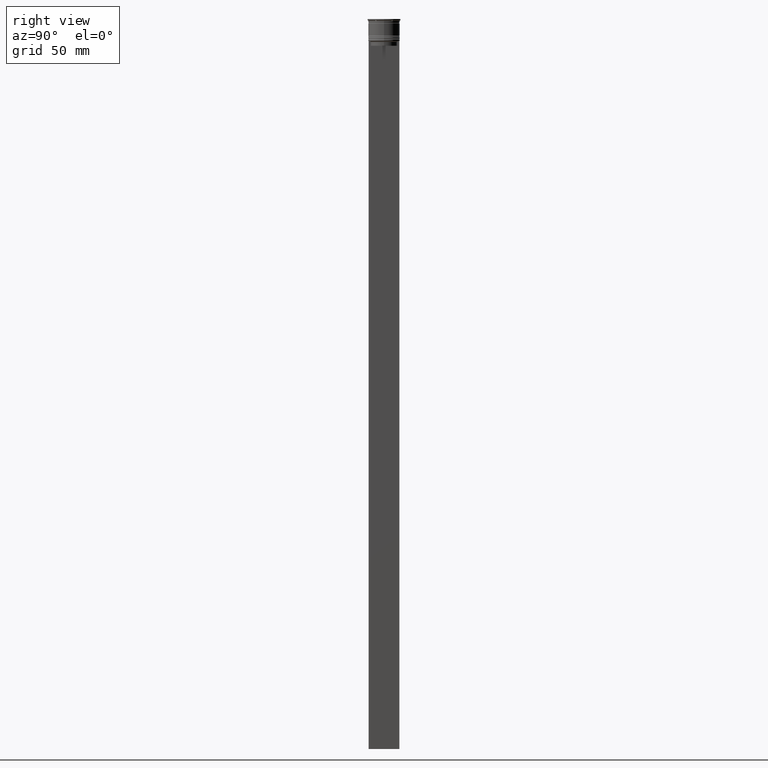
[diagram: clean part render]
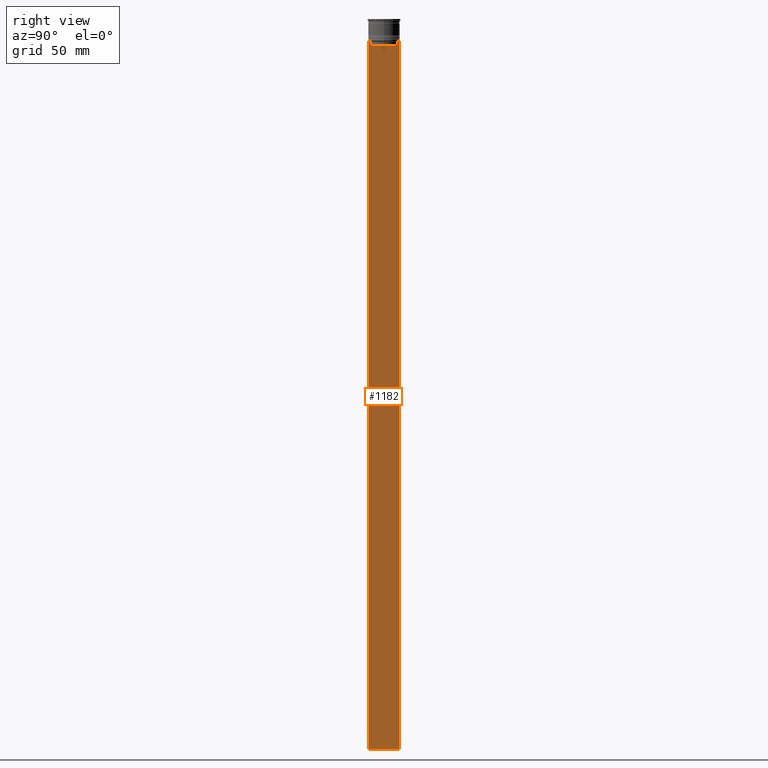
[diagram: same view with one face highlighted and labeled with its STEP entity id]
A machine part, right view. The second image highlights one B-rep face of the part: STEP entity #1182.
In plain terms, the highlighted planar face has unit normal (-1, 0, 0).
Its self-contained STEP definition (entity closure, byte-faithful):
#48 = ORIENTED_EDGE ( 'NONE', *, *, #1731, .T. ) ;
#123 = ORIENTED_EDGE ( 'NONE', *, *, #520, .F. ) ;
#137 = EDGE_CURVE ( 'NONE', #1722, #1807, #585, .T. ) ;
#155 = LINE ( 'NONE', #2394, #1229 ) ;
#193 = CARTESIAN_POINT ( 'NONE',  ( 0.4999999999999998890, 8.385105843100616241, -14.50000000000000000 ) ) ;
#197 = CARTESIAN_POINT ( 'NONE',  ( 0.4999999999999998890, 8.385105843100616241, -14.50000000000000000 ) ) ;
#233 = VECTOR ( 'NONE', #506, 1000.000000000000000 ) ;
#265 = CARTESIAN_POINT ( 'NONE',  ( 0.4999999999999998890, 9.750000000000001776, -464.0000000000000000 ) ) ;
#275 = DIRECTION ( 'NONE',  ( 0.000000000000000000, 0.000000000000000000, -1.000000000000000000 ) ) ;
#299 = VECTOR ( 'NONE', #1886, 1000.000000000000000 ) ;
#301 = CARTESIAN_POINT ( 'NONE',  ( 0.4999999999999998890, -9.749999999999998224, -14.00000000000000178 ) ) ;
#334 = LINE ( 'NONE', #2317, #877 ) ;
#348 = ORIENTED_EDGE ( 'NONE', *, *, #1938, .T. ) ;
#351 = CARTESIAN_POINT ( 'NONE',  ( 0.4999999999999998890, 8.385105843100616241, -17.00000000000000000 ) ) ;
#506 = DIRECTION ( 'NONE',  ( 0.000000000000000000, -1.000000000000000000, 0.000000000000000000 ) ) ;
#512 = LINE ( 'NONE', #751, #1032 ) ;
#520 = EDGE_CURVE ( 'NONE', #2558, #635, #1985, .T. ) ;
#522 = CARTESIAN_POINT ( 'NONE',  ( 0.4999999999999998890, -9.749999999999998224, -14.00000000000000178 ) ) ;
#554 = LINE ( 'NONE', #1542, #1734 ) ;
#557 = DIRECTION ( 'NONE',  ( -0.000000000000000000, -0.000000000000000000, 1.000000000000000000 ) ) ;
#585 = LINE ( 'NONE', #2348, #1995 ) ;
#635 = VERTEX_POINT ( 'NONE', #265 ) ;
#657 = ORIENTED_EDGE ( 'NONE', *, *, #766, .T. ) ;
#676 = VERTEX_POINT ( 'NONE', #522 ) ;
#684 = EDGE_CURVE ( 'NONE', #1950, #676, #2296, .T. ) ;
#724 = B_SPLINE_CURVE_WITH_KNOTS ( 'NONE', 3,
 ( #1072, #1462, #2261, #850 ),
 .UNSPECIFIED., .F., .F.,
 ( 4, 4 ),
 ( 0.03898465126933130243, 0.03969388910599658260 ),
 .UNSPECIFIED. ) ;
#729 = EDGE_CURVE ( 'NONE', #2558, #1902, #512, .T. ) ;
#745 = ORIENTED_EDGE ( 'NONE', *, *, #684, .T. ) ;
#751 = CARTESIAN_POINT ( 'NONE',  ( 0.4999999999999998890, -9.749999999999998224, -14.00000000000000178 ) ) ;
#766 = EDGE_CURVE ( 'NONE', #1749, #635, #554, .T. ) ;
#850 = CARTESIAN_POINT ( 'NONE',  ( 0.4999999999999998890, -8.885943956609230199, -14.00000000000000178 ) ) ;
#877 = VECTOR ( 'NONE', #946, 1000.000000000000000 ) ;
#886 = ORIENTED_EDGE ( 'NONE', *, *, #1089, .T. ) ;
#928 = EDGE_LOOP ( 'NONE', ( #1804, #48, #2144, #1606, #1207, #886, #745, #348, #657, #123 ) ) ;
#946 = DIRECTION ( 'NONE',  ( 0.000000000000000000, 0.000000000000000000, -1.000000000000000000 ) ) ;
#997 = CARTESIAN_POINT ( 'NONE',  ( 0.4999999999999998890, 9.750000000000001776, 5.525624189766635830 ) ) ;
#1004 = CARTESIAN_POINT ( 'NONE',  ( 0.4999999999999998890, 8.719005771582347464, -14.16667453442325453 ) ) ;
#1032 = VECTOR ( 'NONE', #2512, 1000.000000000000000 ) ;
#1072 = CARTESIAN_POINT ( 'NONE',  ( 0.4999999999999998890, -8.385105843100616241, -14.50000000000000000 ) ) ;
#1089 = EDGE_CURVE ( 'NONE', #1807, #1950, #724, .T. ) ;
#1112 = DIRECTION ( 'NONE',  ( -1.000000000000000000, 0.000000000000000000, 0.000000000000000000 ) ) ;
#1135 = DIRECTION ( 'NONE',  ( 0.000000000000000000, 0.000000000000000000, 1.000000000000000000 ) ) ;
#1144 = AXIS2_PLACEMENT_3D ( 'NONE', #2496, #1112, #1135 ) ;
#1156 = CARTESIAN_POINT ( 'NONE',  ( 0.4999999999999998890, -8.885943956609230199, -14.00000000000000178 ) ) ;
#1182 = ADVANCED_FACE ( 'NONE', ( #2100 ), #2483, .F. ) ;
#1207 = ORIENTED_EDGE ( 'NONE', *, *, #137, .T. ) ;
#1212 = CARTESIAN_POINT ( 'NONE',  ( 0.4999999999999998890, 8.552060201981378285, -14.33334167021640582 ) ) ;
#1229 = VECTOR ( 'NONE', #1552, 1000.000000000000000 ) ;
#1287 = EDGE_CURVE ( 'NONE', #1627, #1722, #155, .T. ) ;
#1297 = VERTEX_POINT ( 'NONE', #197 ) ;
#1462 = CARTESIAN_POINT ( 'NONE',  ( 0.4999999999999998890, -8.552060194457768105, -14.33334167772667556 ) ) ;
#1473 = EDGE_CURVE ( 'NONE', #1297, #1627, #2265, .T. ) ;
#1516 = VECTOR ( 'NONE', #275, 1000.000000000000000 ) ;
#1542 = CARTESIAN_POINT ( 'NONE',  ( 0.4999999999999998890, -9.749999999999998224, -464.0000000000000000 ) ) ;
#1552 = DIRECTION ( 'NONE',  ( 0.000000000000000000, -1.000000000000000000, 0.000000000000000000 ) ) ;
#1589 = CARTESIAN_POINT ( 'NONE',  ( 0.4999999999999998890, -9.749999999999998224, -464.0000000000000000 ) ) ;
#1606 = ORIENTED_EDGE ( 'NONE', *, *, #1287, .T. ) ;
#1627 = VERTEX_POINT ( 'NONE', #351 ) ;
#1676 = CARTESIAN_POINT ( 'NONE',  ( 0.4999999999999998890, -8.385105843100616241, -14.50000000000000000 ) ) ;
#1722 = VERTEX_POINT ( 'NONE', #2388 ) ;
#1731 = EDGE_CURVE ( 'NONE', #1902, #1297, #2489, .T. ) ;
#1734 = VECTOR ( 'NONE', #2288, 1000.000000000000000 ) ;
#1749 = VERTEX_POINT ( 'NONE', #1589 ) ;
#1804 = ORIENTED_EDGE ( 'NONE', *, *, #729, .T. ) ;
#1807 = VERTEX_POINT ( 'NONE', #1676 ) ;
#1845 = CARTESIAN_POINT ( 'NONE',  ( 0.4999999999999998890, 8.885943956609230199, -14.00000000000000178 ) ) ;
#1861 = CARTESIAN_POINT ( 'NONE',  ( 0.4999999999999998890, 8.385105843100616241, 0.000000000000000000 ) ) ;
#1886 = DIRECTION ( 'NONE',  ( 0.000000000000000000, 0.000000000000000000, -1.000000000000000000 ) ) ;
#1902 = VERTEX_POINT ( 'NONE', #1845 ) ;
#1938 = EDGE_CURVE ( 'NONE', #676, #1749, #334, .T. ) ;
#1950 = VERTEX_POINT ( 'NONE', #1156 ) ;
#1977 = CARTESIAN_POINT ( 'NONE',  ( 0.4999999999999998890, 8.885943956609230199, -14.00000000000000178 ) ) ;
#1985 = LINE ( 'NONE', #997, #1516 ) ;
#1994 = CARTESIAN_POINT ( 'NONE',  ( 0.4999999999999998890, 9.750000000000001776, -14.00000000000000178 ) ) ;
#1995 = VECTOR ( 'NONE', #557, 1000.000000000000000 ) ;
#2100 = FACE_OUTER_BOUND ( 'NONE', #928, .T. ) ;
#2144 = ORIENTED_EDGE ( 'NONE', *, *, #1473, .T. ) ;
#2261 = CARTESIAN_POINT ( 'NONE',  ( 0.4999999999999998890, -8.719005764482787413, -14.16667454151160044 ) ) ;
#2265 = LINE ( 'NONE', #1861, #299 ) ;
#2288 = DIRECTION ( 'NONE',  ( 0.000000000000000000, 1.000000000000000000, 0.000000000000000000 ) ) ;
#2296 = LINE ( 'NONE', #301, #233 ) ;
#2317 = CARTESIAN_POINT ( 'NONE',  ( 0.4999999999999998890, -9.749999999999998224, 5.525624189766635830 ) ) ;
#2348 = CARTESIAN_POINT ( 'NONE',  ( 0.4999999999999998890, -8.385105843100616241, 0.000000000000000000 ) ) ;
#2388 = CARTESIAN_POINT ( 'NONE',  ( 0.4999999999999998890, -8.385105843100616241, -17.00000000000000000 ) ) ;
#2394 = CARTESIAN_POINT ( 'NONE',  ( 0.4999999999999998890, 8.400000000000003908, -17.00000000000000000 ) ) ;
#2483 = PLANE ( 'NONE',  #1144 ) ;
#2489 = B_SPLINE_CURVE_WITH_KNOTS ( 'NONE', 3,
 ( #1977, #1004, #1212, #193 ),
 .UNSPECIFIED., .F., .F.,
 ( 4, 4 ),
 ( 0.01511546479386908018, 0.01582316445439079997 ),
 .UNSPECIFIED. ) ;
#2496 = CARTESIAN_POINT ( 'NONE',  ( 0.4999999999999998890, -9.749999999999998224, 5.525624189766635830 ) ) ;
#2512 = DIRECTION ( 'NONE',  ( 0.000000000000000000, -1.000000000000000000, 0.000000000000000000 ) ) ;
#2558 = VERTEX_POINT ( 'NONE', #1994 ) ;